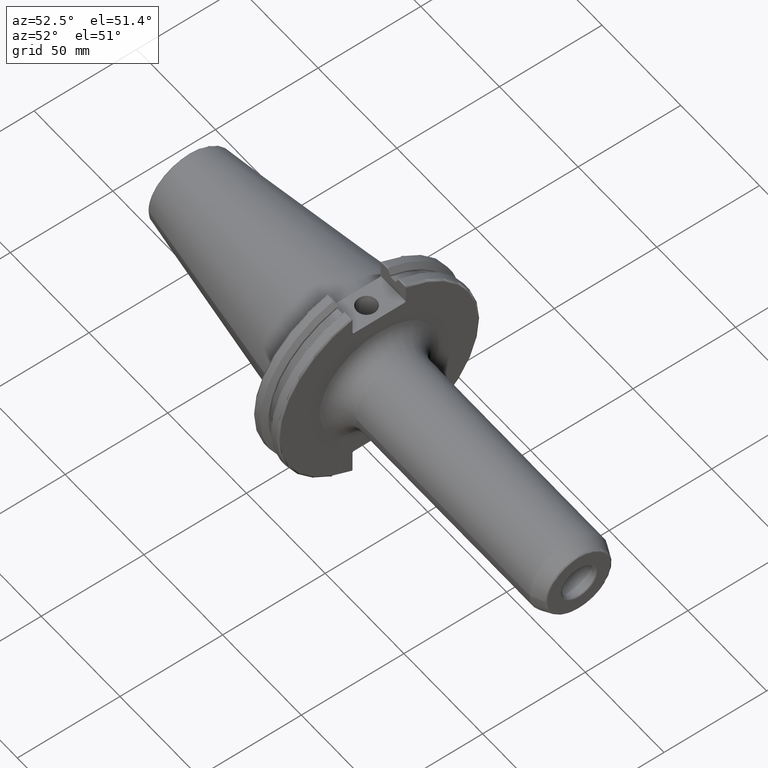
[diagram: clean part render]
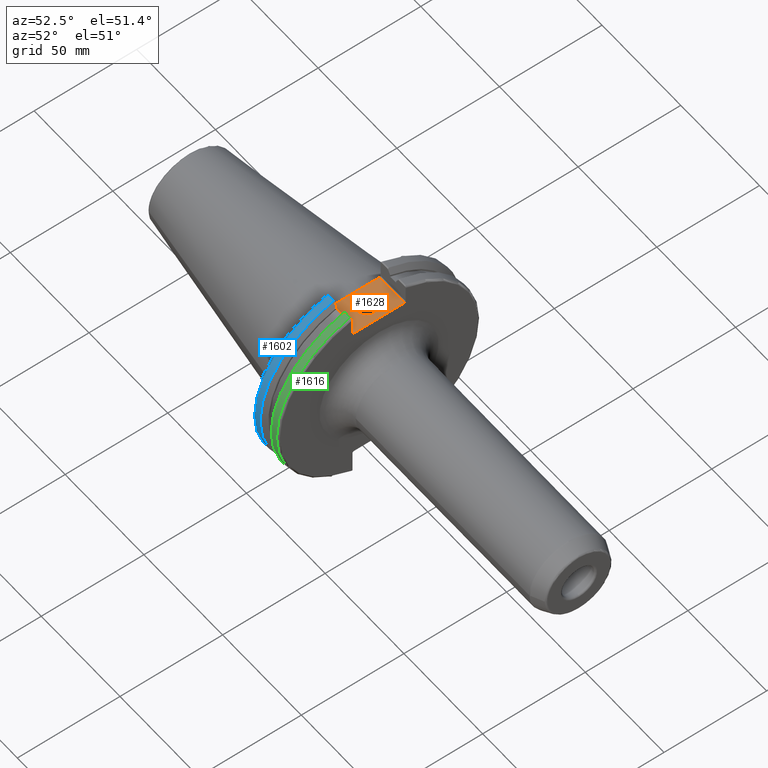
[diagram: same view with three faces highlighted in distinct colors, each labeled with its STEP entity id]
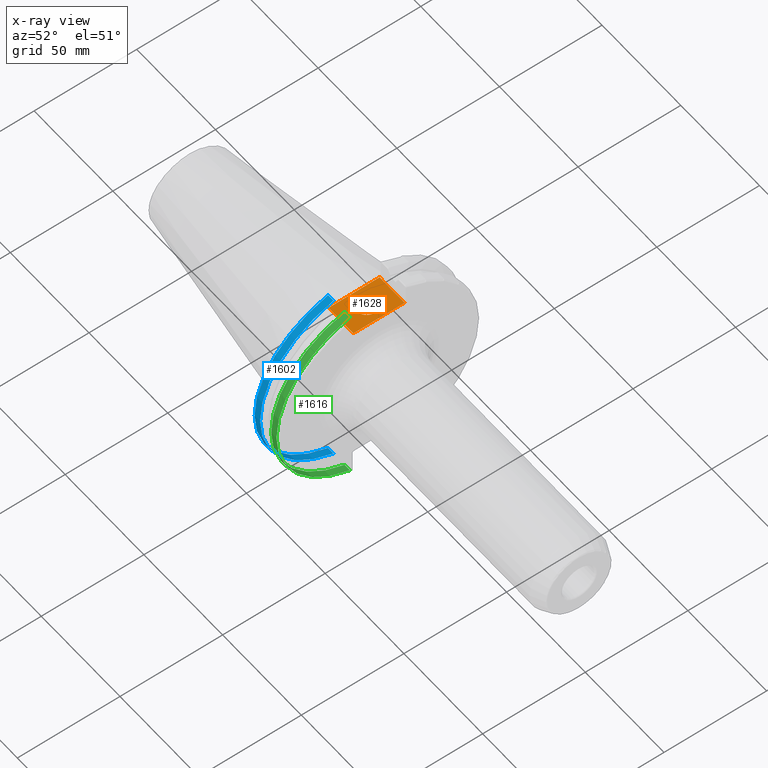
[diagram: x-ray of the same camera — body ghosted, the three highlighted faces saturated]
A machine part, auxiliary view with three faces highlighted in distinct colors.
The next image is the same camera in x-ray (body ghosted, the three faces saturated) — at least one of them is partly hidden behind the body in this view.
Their STEP definitions:

[orange] entity #1628 — the highlighted planar face has unit normal (0, 0, 1).
#51=FACE_BOUND('',#306,.T.);
#112=PLANE('',#1820);
#197=FACE_OUTER_BOUND('',#305,.T.);
#305=EDGE_LOOP('',(#1481,#1482,#1483,#1484));
#306=EDGE_LOOP('',(#1485));
#324=LINE('',#2405,#421);
#368=LINE('',#3019,#465);
#396=LINE('',#3248,#493);
#398=LINE('',#3251,#495);
#421=VECTOR('',#1882,10.);
#465=VECTOR('',#2100,10.);
#493=VECTOR('',#2194,10.);
#495=VECTOR('',#2198,10.);
#583=CIRCLE('',#1812,4.7625);
#654=VERTEX_POINT('',#2402);
#655=VERTEX_POINT('',#2404);
#747=VERTEX_POINT('',#3016);
#748=VERTEX_POINT('',#3018);
#794=VERTEX_POINT('',#3287);
#822=EDGE_CURVE('',#654,#655,#324,.T.);
#945=EDGE_CURVE('',#747,#748,#368,.T.);
#1008=EDGE_CURVE('',#655,#747,#396,.T.);
#1010=EDGE_CURVE('',#748,#654,#398,.T.);
#1025=EDGE_CURVE('',#794,#794,#583,.T.);
#1481=ORIENTED_EDGE('',*,*,#1008,.F.);
#1482=ORIENTED_EDGE('',*,*,#822,.F.);
#1483=ORIENTED_EDGE('',*,*,#1010,.F.);
#1484=ORIENTED_EDGE('',*,*,#945,.F.);
#1485=ORIENTED_EDGE('',*,*,#1025,.T.);
#1628=ADVANCED_FACE('',(#197,#51),#112,.T.);
#1812=AXIS2_PLACEMENT_3D('',#3288,#2233,#2234);
#1820=AXIS2_PLACEMENT_3D('',#3297,#2250,#2251);
#1882=DIRECTION('',(0.,-1.,0.));
#2100=DIRECTION('',(0.,1.,0.));
#2194=DIRECTION('',(-1.,1.31581988103722E-16,0.));
#2198=DIRECTION('',(1.,0.,0.));
#2233=DIRECTION('center_axis',(0.,0.,-1.));
#2234=DIRECTION('ref_axis',(1.,0.,0.));
#2250=DIRECTION('center_axis',(0.,0.,1.));
#2251=DIRECTION('ref_axis',(1.,0.,0.));
#2402=CARTESIAN_POINT('',(19.05,12.45,37.719));
#2404=CARTESIAN_POINT('',(19.05,-12.45,37.719));
#2405=CARTESIAN_POINT('',(19.05,0.,37.719));
#3016=CARTESIAN_POINT('',(3.175,-12.45,37.719));
#3018=CARTESIAN_POINT('',(3.175,12.45,37.719));
#3019=CARTESIAN_POINT('',(3.175,24.60625,37.719));
#3248=CARTESIAN_POINT('',(10.63125,-12.45,37.719));
#3251=CARTESIAN_POINT('',(19.06875,12.45,37.719));
#3287=CARTESIAN_POINT('',(6.3716,-5.83238038093927E-16,37.719));
#3288=CARTESIAN_POINT('Origin',(11.1341,0.,37.719));
#3297=CARTESIAN_POINT('Origin',(18.0875,0.,37.719));

[blue] entity #1602 — the highlighted cylindrical surface (partial cylindrical patch) has radius 49.2125 mm, axis along (1, 0, 0).
#171=FACE_OUTER_BOUND('',#278,.T.);
#278=EDGE_LOOP('',(#1363,#1364,#1365,#1366));
#390=LINE('',#3186,#487);
#391=LINE('',#3192,#488);
#487=VECTOR('',#2150,10.);
#488=VECTOR('',#2153,10.);
#572=CIRCLE('',#1778,49.2125);
#573=CIRCLE('',#1781,49.2125);
#775=VERTEX_POINT('',#3165);
#776=VERTEX_POINT('',#3174);
#777=VERTEX_POINT('',#3185);
#778=VERTEX_POINT('',#3191);
#987=EDGE_CURVE('',#775,#776,#572,.T.);
#989=EDGE_CURVE('',#776,#777,#390,.T.);
#991=EDGE_CURVE('',#778,#775,#391,.T.);
#992=EDGE_CURVE('',#777,#778,#573,.T.);
#1363=ORIENTED_EDGE('',*,*,#987,.F.);
#1364=ORIENTED_EDGE('',*,*,#991,.F.);
#1365=ORIENTED_EDGE('',*,*,#992,.F.);
#1366=ORIENTED_EDGE('',*,*,#989,.F.);
#1539=CYLINDRICAL_SURFACE('',#1780,49.2125);
#1602=ADVANCED_FACE('',(#171),#1539,.T.);
#1778=AXIS2_PLACEMENT_3D('',#3175,#2146,#2147);
#1780=AXIS2_PLACEMENT_3D('',#3190,#2151,#2152);
#1781=AXIS2_PLACEMENT_3D('',#3193,#2154,#2155);
#2146=DIRECTION('center_axis',(-1.,0.,0.));
#2147=DIRECTION('ref_axis',(0.,-1.,1.60812264967664E-16));
#2150=DIRECTION('',(1.,0.,0.));
#2151=DIRECTION('center_axis',(1.,0.,0.));
#2152=DIRECTION('ref_axis',(0.,-1.,1.22464679914735E-16));
#2153=DIRECTION('',(-1.,0.,0.));
#2154=DIRECTION('center_axis',(1.,0.,0.));
#2155=DIRECTION('ref_axis',(0.,0.,-1.));
#3165=CARTESIAN_POINT('',(4.175,-13.4317035994433,-47.3440544806494));
#3174=CARTESIAN_POINT('',(4.175,-13.4317035994433,47.3440544806494));
#3175=CARTESIAN_POINT('Origin',(4.175,0.,0.));
#3185=CARTESIAN_POINT('',(7.60799096595127,-13.4317035994433,47.3440544806494));
#3186=CARTESIAN_POINT('',(5.39149548297563,-13.4317035994433,47.3440544806494));
#3190=CARTESIAN_POINT('Origin',(5.39149548297563,0.,0.));
#3191=CARTESIAN_POINT('',(7.60799096595127,-13.4317035994433,-47.3440544806494));
#3192=CARTESIAN_POINT('',(5.39149548297563,-13.4317035994433,-47.3440544806494));
#3193=CARTESIAN_POINT('Origin',(7.60799096595127,0.,0.));

[green] entity #1616 — the highlighted cylindrical surface (partial cylindrical patch) has radius 49.2125 mm, axis along (1, 0, 0).
#185=FACE_OUTER_BOUND('',#293,.T.);
#293=EDGE_LOOP('',(#1429,#1430,#1431,#1432));
#404=LINE('',#3266,#501);
#405=LINE('',#3268,#502);
#501=VECTOR('',#2208,10.);
#502=VECTOR('',#2211,10.);
#543=CIRCLE('',#1719,49.2125);
#571=CIRCLE('',#1774,49.2125);
#701=VERTEX_POINT('',#2734);
#702=VERTEX_POINT('',#2738);
#766=VERTEX_POINT('',#3109);
#767=VERTEX_POINT('',#3118);
#882=EDGE_CURVE('',#702,#701,#543,.T.);
#971=EDGE_CURVE('',#766,#767,#571,.T.);
#1017=EDGE_CURVE('',#767,#701,#404,.T.);
#1018=EDGE_CURVE('',#702,#766,#405,.T.);
#1429=ORIENTED_EDGE('',*,*,#971,.F.);
#1430=ORIENTED_EDGE('',*,*,#1018,.F.);
#1431=ORIENTED_EDGE('',*,*,#882,.T.);
#1432=ORIENTED_EDGE('',*,*,#1017,.F.);
#1540=CYLINDRICAL_SURFACE('',#1802,49.2125);
#1616=ADVANCED_FACE('',(#185),#1540,.T.);
#1719=AXIS2_PLACEMENT_3D('',#2739,#1984,#1985);
#1774=AXIS2_PLACEMENT_3D('',#3119,#2129,#2130);
#1802=AXIS2_PLACEMENT_3D('',#3267,#2209,#2210);
#1984=DIRECTION('center_axis',(1.,0.,0.));
#1985=DIRECTION('ref_axis',(0.,0.,-1.));
#2129=DIRECTION('center_axis',(1.,0.,0.));
#2130=DIRECTION('ref_axis',(0.,-1.,1.60812264967664E-16));
#2208=DIRECTION('',(-1.,0.,0.));
#2209=DIRECTION('center_axis',(1.,0.,0.));
#2210=DIRECTION('ref_axis',(0.,-1.,1.22464679914735E-16));
#2211=DIRECTION('',(1.,0.,0.));
#2734=CARTESIAN_POINT('',(14.6602090340487,-13.4317035994433,-47.3440544806494));
#2738=CARTESIAN_POINT('',(14.6602090340487,-13.4317035994433,47.3440544806494));
#2739=CARTESIAN_POINT('Origin',(14.6602090340487,0.,0.));
#3109=CARTESIAN_POINT('',(18.05,-13.4317035994433,47.3440544806494));
#3118=CARTESIAN_POINT('',(18.05,-13.4317035994433,-47.3440544806494));
#3119=CARTESIAN_POINT('Origin',(18.05,0.,0.));
#3266=CARTESIAN_POINT('',(16.8551045170244,-13.4317035994433,-47.3440544806494));
#3267=CARTESIAN_POINT('Origin',(16.8551045170244,0.,0.));
#3268=CARTESIAN_POINT('',(16.8551045170244,-13.4317035994433,47.3440544806494));